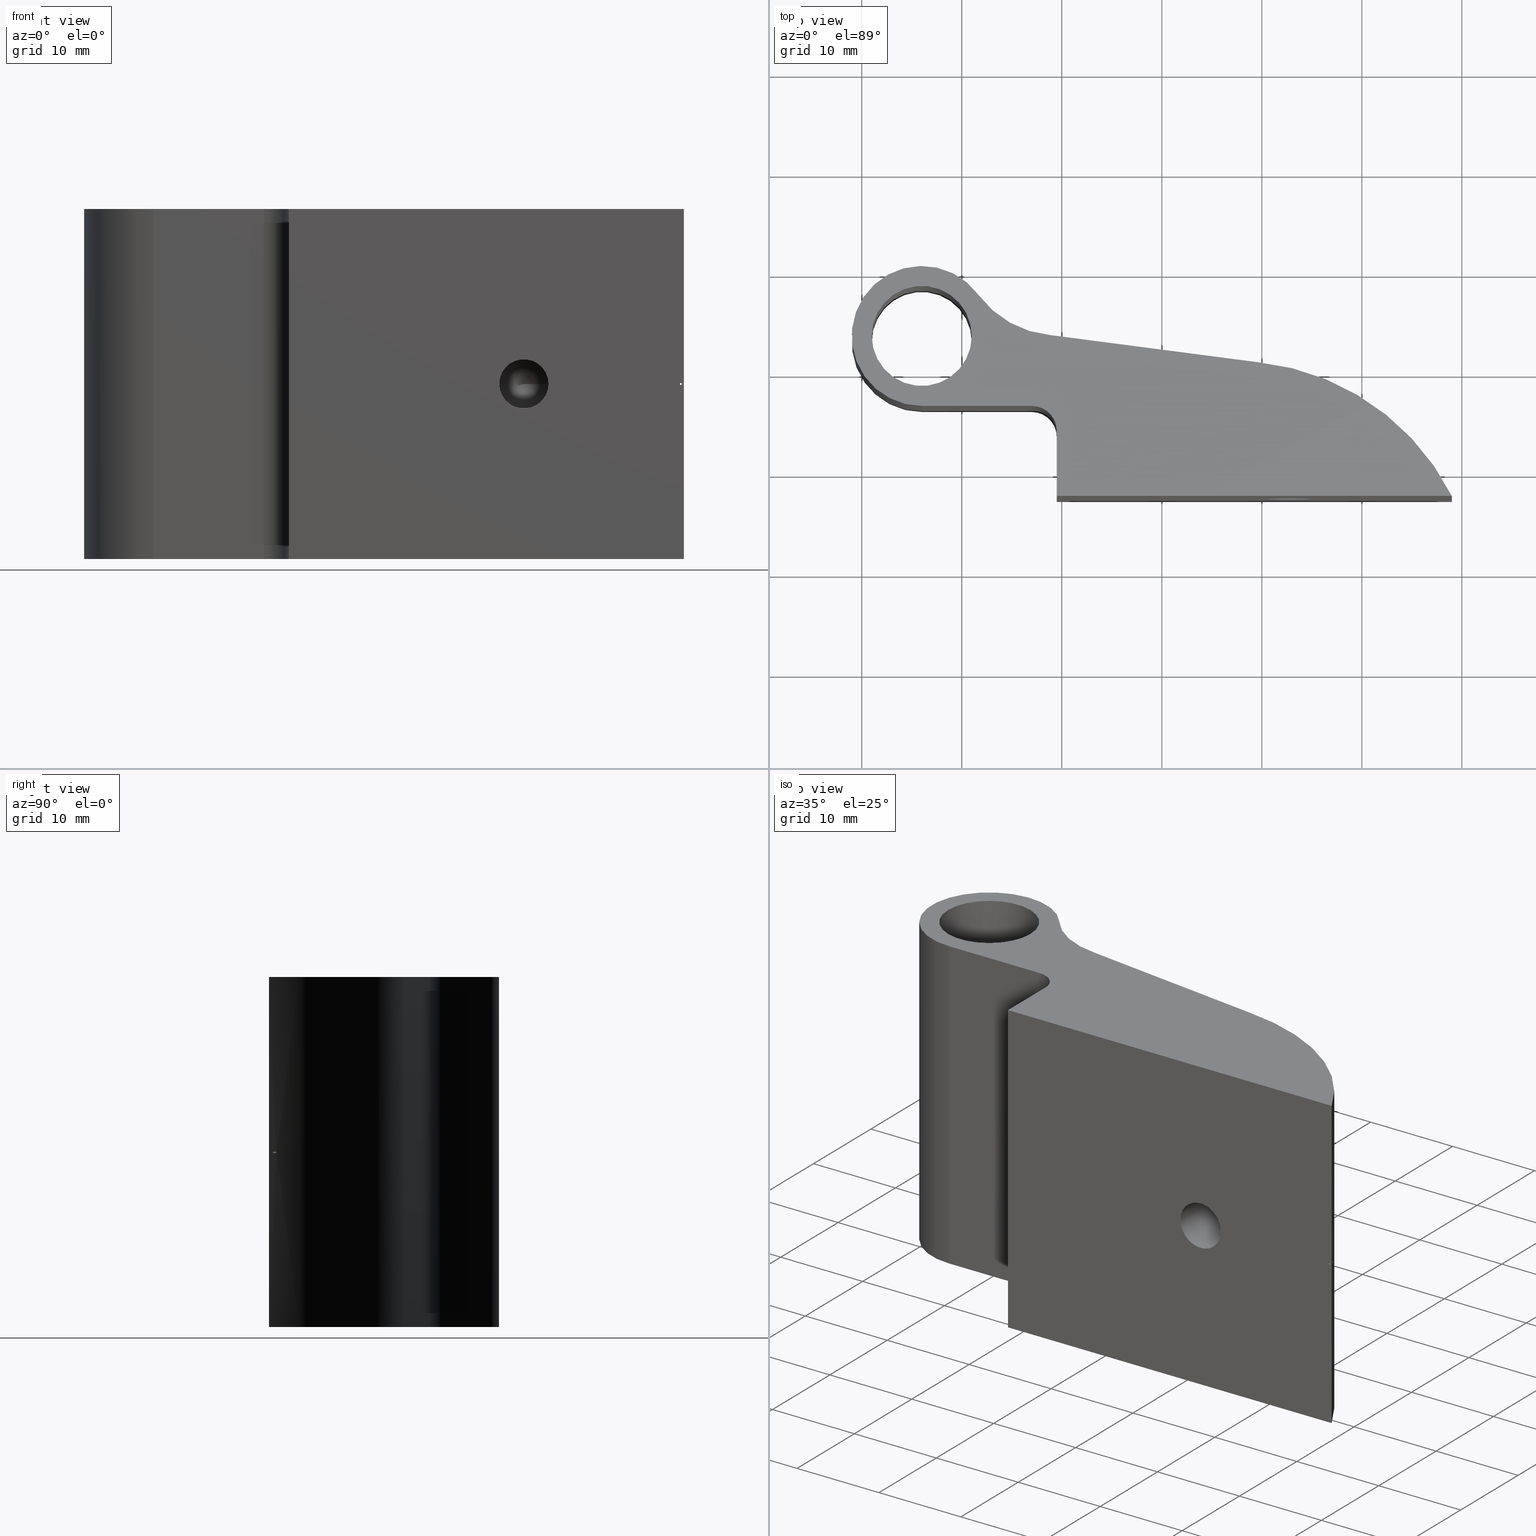
[diagram: canonical four-view strip — front | top / right | iso, engineering-drawing reading convention]
A machine part, canonical four-view strip (front | top / right | iso — engineering-drawing reading convention). The complete STEP part file that produces these views, byte-faithful:
ISO-10303-21;
HEADER;
/* Generated by software containing ST-Developer
 * from STEP Tools, Inc. (www.steptools.com) 
 */

FILE_DESCRIPTION(
/* description */ ('SEMICERNIERA MOBILE C.2348 ALL.ANOD.ARG.'),
/* implementation_level */ '2;1');

FILE_NAME(
/* name */ 
'Q:\\Catalogo\\2_Accessori Dierre\\Per Download Web e catalogo cartace
o\\CATALOGO ACCESSORI PER RIPARI\\PAGINA 58\\CCRAA0000023.stp',
/* time_stamp */ '2018-11-08T17:59:59+01:00',
/* author */ ('fzagni'),
/* organization */ (''),
/* preprocessor_version */ 'ST-DEVELOPER v16.1',
/* originating_system */ 'Autodesk Inventor 2016',
/* authorisation */ '');

FILE_SCHEMA (('AUTOMOTIVE_DESIGN { 1 0 10303 214 3 1 1 }'));
ENDSEC;

DATA;
#10=MECHANICAL_DESIGN_GEOMETRIC_PRESENTATION_REPRESENTATION('',(#13),#457);
#11=SHAPE_REPRESENTATION_RELATIONSHIP('SRR','None',#466,#12);
#12=ADVANCED_BREP_SHAPE_REPRESENTATION('',(#14),#456);
#13=STYLED_ITEM('',(#475),#14);
#14=MANIFOLD_SOLID_BREP('Solido1',#245);
#15=LINE('',#407,#31);
#16=LINE('',#409,#32);
#17=LINE('',#413,#33);
#18=LINE('',#419,#34);
#19=LINE('',#423,#35);
#20=LINE('',#425,#36);
#21=LINE('',#426,#37);
#22=LINE('',#430,#38);
#23=LINE('',#433,#39);
#24=LINE('',#434,#40);
#25=LINE('',#438,#41);
#26=LINE('',#442,#42);
#27=LINE('',#445,#43);
#28=LINE('',#446,#44);
#29=LINE('',#450,#45);
#30=LINE('',#452,#46);
#31=VECTOR('',#296,39.5);
#32=VECTOR('',#297,6.5);
#33=VECTOR('',#300,10.9999999999994);
#34=VECTOR('',#305,20.8640507154188);
#35=VECTOR('',#310,35.);
#36=VECTOR('',#311,6.5);
#37=VECTOR('',#312,35.);
#38=VECTOR('',#317,35.);
#39=VECTOR('',#320,10.9999999999994);
#40=VECTOR('',#321,35.);
#41=VECTOR('',#326,35.);
#42=VECTOR('',#331,35.);
#43=VECTOR('',#334,20.8640507154188);
#44=VECTOR('',#335,35.);
#45=VECTOR('',#340,35.);
#46=VECTOR('',#343,39.5);
#47=PLANE('',#256);
#48=PLANE('',#261);
#49=PLANE('',#264);
#50=PLANE('',#269);
#51=PLANE('',#272);
#52=PLANE('',#273);
#53=CONICAL_SURFACE('',#249,1.22925,59.);
#54=FACE_BOUND('',#90,.T.);
#55=FACE_BOUND('',#93,.T.);
#56=FACE_BOUND('',#95,.T.);
#57=FACE_BOUND('',#97,.T.);
#58=FACE_BOUND('',#105,.T.);
#59=FACE_BOUND('',#107,.T.);
#60=FACE_BOUND('',#108,.T.);
#61=FACE_BOUND('',#110,.T.);
#62=CIRCLE('',#248,0.100000000000001);
#63=CIRCLE('',#250,2.4585);
#64=CIRCLE('',#252,2.4585);
#65=CIRCLE('',#254,5.);
#66=CIRCLE('',#255,5.);
#67=CIRCLE('',#257,2.5);
#68=CIRCLE('',#258,7.);
#69=CIRCLE('',#259,10.);
#70=CIRCLE('',#260,24.5);
#71=CIRCLE('',#263,2.5);
#72=CIRCLE('',#266,7.);
#73=CIRCLE('',#268,10.);
#74=CIRCLE('',#271,24.5);
#75=FACE_OUTER_BOUND('',#89,.T.);
#76=FACE_OUTER_BOUND('',#91,.T.);
#77=FACE_OUTER_BOUND('',#92,.T.);
#78=FACE_OUTER_BOUND('',#94,.T.);
#79=FACE_OUTER_BOUND('',#96,.T.);
#80=FACE_OUTER_BOUND('',#98,.T.);
#81=FACE_OUTER_BOUND('',#99,.T.);
#82=FACE_OUTER_BOUND('',#100,.T.);
#83=FACE_OUTER_BOUND('',#101,.T.);
#84=FACE_OUTER_BOUND('',#102,.T.);
#85=FACE_OUTER_BOUND('',#103,.T.);
#86=FACE_OUTER_BOUND('',#104,.T.);
#87=FACE_OUTER_BOUND('',#106,.T.);
#88=FACE_OUTER_BOUND('',#109,.T.);
#89=EDGE_LOOP('',(#164));
#90=EDGE_LOOP('',(#165));
#91=EDGE_LOOP('',(#166));
#92=EDGE_LOOP('',(#167));
#93=EDGE_LOOP('',(#168));
#94=EDGE_LOOP('',(#169));
#95=EDGE_LOOP('',(#170));
#96=EDGE_LOOP('',(#171,#172,#173,#174,#175,#176,#177,#178));
#97=EDGE_LOOP('',(#179));
#98=EDGE_LOOP('',(#180,#181,#182,#183));
#99=EDGE_LOOP('',(#184,#185,#186,#187));
#100=EDGE_LOOP('',(#188,#189,#190,#191));
#101=EDGE_LOOP('',(#192,#193,#194,#195));
#102=EDGE_LOOP('',(#196,#197,#198,#199));
#103=EDGE_LOOP('',(#200,#201,#202,#203));
#104=EDGE_LOOP('',(#204,#205,#206,#207));
#105=EDGE_LOOP('',(#208));
#106=EDGE_LOOP('',(#209,#210,#211,#212));
#107=EDGE_LOOP('',(#213));
#108=EDGE_LOOP('',(#214));
#109=EDGE_LOOP('',(#215,#216,#217,#218,#219,#220,#221,#222));
#110=EDGE_LOOP('',(#223));
#111=B_SPLINE_CURVE_WITH_KNOTS('',3,(#349,#350,#351,#352,#353,#354,#355,
#356,#357,#358,#359,#360,#361,#362,#363,#364,#365,#366,#367,#368,#369,#370,
#371,#372,#373,#374,#375,#376,#377,#378,#379,#380,#381,#382,#383,#384,#385,
#386,#387,#388,#389,#390),.UNSPECIFIED.,.T.,.F.,(4,2,2,2,2,2,2,2,2,2,2,
2,2,2,2,2,2,2,2,2,4),(0.,0.00188123126465381,0.00376246252930762,0.00752492505861524,
0.0158380842048344,0.0241512433510535,0.0325772104449335,0.0410031775388136,
0.0447923396591711,0.0466869207193498,0.0485815017795285,0.0504760828397073,
0.052370663899886,0.0561598260202435,0.0645857931141235,0.0730117602080036,
0.0813249193542227,0.0896380785004418,0.0934005410297495,0.0952817722944033,
0.0971630035590571),.UNSPECIFIED.);
#112=VERTEX_POINT('',#348);
#113=VERTEX_POINT('',#391);
#114=VERTEX_POINT('',#394);
#115=VERTEX_POINT('',#397);
#116=VERTEX_POINT('',#400);
#117=VERTEX_POINT('',#402);
#118=VERTEX_POINT('',#405);
#119=VERTEX_POINT('',#406);
#120=VERTEX_POINT('',#408);
#121=VERTEX_POINT('',#410);
#122=VERTEX_POINT('',#412);
#123=VERTEX_POINT('',#414);
#124=VERTEX_POINT('',#416);
#125=VERTEX_POINT('',#418);
#126=VERTEX_POINT('',#422);
#127=VERTEX_POINT('',#424);
#128=VERTEX_POINT('',#428);
#129=VERTEX_POINT('',#432);
#130=VERTEX_POINT('',#436);
#131=VERTEX_POINT('',#440);
#132=VERTEX_POINT('',#444);
#133=VERTEX_POINT('',#448);
#134=EDGE_CURVE('',#112,#112,#111,.T.);
#135=EDGE_CURVE('',#113,#113,#62,.T.);
#136=EDGE_CURVE('',#114,#114,#63,.T.);
#137=EDGE_CURVE('',#115,#115,#64,.T.);
#138=EDGE_CURVE('',#116,#116,#65,.T.);
#139=EDGE_CURVE('',#117,#117,#66,.T.);
#140=EDGE_CURVE('',#118,#119,#15,.T.);
#141=EDGE_CURVE('',#119,#120,#16,.T.);
#142=EDGE_CURVE('',#120,#121,#67,.T.);
#143=EDGE_CURVE('',#121,#122,#17,.T.);
#144=EDGE_CURVE('',#122,#123,#68,.T.);
#145=EDGE_CURVE('',#123,#124,#69,.T.);
#146=EDGE_CURVE('',#124,#125,#18,.T.);
#147=EDGE_CURVE('',#125,#118,#70,.T.);
#148=EDGE_CURVE('',#126,#119,#19,.T.);
#149=EDGE_CURVE('',#127,#126,#20,.T.);
#150=EDGE_CURVE('',#127,#120,#21,.T.);
#151=EDGE_CURVE('',#128,#127,#71,.T.);
#152=EDGE_CURVE('',#128,#121,#22,.T.);
#153=EDGE_CURVE('',#129,#128,#23,.T.);
#154=EDGE_CURVE('',#129,#122,#24,.T.);
#155=EDGE_CURVE('',#130,#129,#72,.T.);
#156=EDGE_CURVE('',#130,#123,#25,.T.);
#157=EDGE_CURVE('',#131,#130,#73,.T.);
#158=EDGE_CURVE('',#131,#124,#26,.T.);
#159=EDGE_CURVE('',#132,#131,#27,.T.);
#160=EDGE_CURVE('',#132,#125,#28,.T.);
#161=EDGE_CURVE('',#133,#132,#74,.T.);
#162=EDGE_CURVE('',#118,#133,#29,.T.);
#163=EDGE_CURVE('',#126,#133,#30,.T.);
#164=ORIENTED_EDGE('',*,*,#134,.F.);
#165=ORIENTED_EDGE('',*,*,#135,.F.);
#166=ORIENTED_EDGE('',*,*,#136,.T.);
#167=ORIENTED_EDGE('',*,*,#137,.F.);
#168=ORIENTED_EDGE('',*,*,#136,.F.);
#169=ORIENTED_EDGE('',*,*,#138,.F.);
#170=ORIENTED_EDGE('',*,*,#139,.F.);
#171=ORIENTED_EDGE('',*,*,#140,.T.);
#172=ORIENTED_EDGE('',*,*,#141,.T.);
#173=ORIENTED_EDGE('',*,*,#142,.T.);
#174=ORIENTED_EDGE('',*,*,#143,.T.);
#175=ORIENTED_EDGE('',*,*,#144,.T.);
#176=ORIENTED_EDGE('',*,*,#145,.T.);
#177=ORIENTED_EDGE('',*,*,#146,.T.);
#178=ORIENTED_EDGE('',*,*,#147,.T.);
#179=ORIENTED_EDGE('',*,*,#138,.T.);
#180=ORIENTED_EDGE('',*,*,#148,.F.);
#181=ORIENTED_EDGE('',*,*,#149,.F.);
#182=ORIENTED_EDGE('',*,*,#150,.T.);
#183=ORIENTED_EDGE('',*,*,#141,.F.);
#184=ORIENTED_EDGE('',*,*,#150,.F.);
#185=ORIENTED_EDGE('',*,*,#151,.F.);
#186=ORIENTED_EDGE('',*,*,#152,.T.);
#187=ORIENTED_EDGE('',*,*,#142,.F.);
#188=ORIENTED_EDGE('',*,*,#152,.F.);
#189=ORIENTED_EDGE('',*,*,#153,.F.);
#190=ORIENTED_EDGE('',*,*,#154,.T.);
#191=ORIENTED_EDGE('',*,*,#143,.F.);
#192=ORIENTED_EDGE('',*,*,#154,.F.);
#193=ORIENTED_EDGE('',*,*,#155,.F.);
#194=ORIENTED_EDGE('',*,*,#156,.T.);
#195=ORIENTED_EDGE('',*,*,#144,.F.);
#196=ORIENTED_EDGE('',*,*,#156,.F.);
#197=ORIENTED_EDGE('',*,*,#157,.F.);
#198=ORIENTED_EDGE('',*,*,#158,.T.);
#199=ORIENTED_EDGE('',*,*,#145,.F.);
#200=ORIENTED_EDGE('',*,*,#158,.F.);
#201=ORIENTED_EDGE('',*,*,#159,.F.);
#202=ORIENTED_EDGE('',*,*,#160,.T.);
#203=ORIENTED_EDGE('',*,*,#146,.F.);
#204=ORIENTED_EDGE('',*,*,#160,.F.);
#205=ORIENTED_EDGE('',*,*,#161,.F.);
#206=ORIENTED_EDGE('',*,*,#162,.F.);
#207=ORIENTED_EDGE('',*,*,#147,.F.);
#208=ORIENTED_EDGE('',*,*,#134,.T.);
#209=ORIENTED_EDGE('',*,*,#162,.T.);
#210=ORIENTED_EDGE('',*,*,#163,.F.);
#211=ORIENTED_EDGE('',*,*,#148,.T.);
#212=ORIENTED_EDGE('',*,*,#140,.F.);
#213=ORIENTED_EDGE('',*,*,#135,.T.);
#214=ORIENTED_EDGE('',*,*,#137,.T.);
#215=ORIENTED_EDGE('',*,*,#163,.T.);
#216=ORIENTED_EDGE('',*,*,#161,.T.);
#217=ORIENTED_EDGE('',*,*,#159,.T.);
#218=ORIENTED_EDGE('',*,*,#157,.T.);
#219=ORIENTED_EDGE('',*,*,#155,.T.);
#220=ORIENTED_EDGE('',*,*,#153,.T.);
#221=ORIENTED_EDGE('',*,*,#151,.T.);
#222=ORIENTED_EDGE('',*,*,#149,.T.);
#223=ORIENTED_EDGE('',*,*,#139,.T.);
#224=CYLINDRICAL_SURFACE('',#247,0.100000000000001);
#225=CYLINDRICAL_SURFACE('',#251,2.4585);
#226=CYLINDRICAL_SURFACE('',#253,5.);
#227=CYLINDRICAL_SURFACE('',#262,2.5);
#228=CYLINDRICAL_SURFACE('',#265,7.);
#229=CYLINDRICAL_SURFACE('',#267,10.);
#230=CYLINDRICAL_SURFACE('',#270,24.5);
#231=ADVANCED_FACE('',(#75,#54),#224,.F.);
#232=ADVANCED_FACE('',(#76),#53,.F.);
#233=ADVANCED_FACE('',(#77,#55),#225,.F.);
#234=ADVANCED_FACE('',(#78,#56),#226,.F.);
#235=ADVANCED_FACE('',(#79,#57),#47,.F.);
#236=ADVANCED_FACE('',(#80),#48,.T.);
#237=ADVANCED_FACE('',(#81),#227,.F.);
#238=ADVANCED_FACE('',(#82),#49,.T.);
#239=ADVANCED_FACE('',(#83),#228,.T.);
#240=ADVANCED_FACE('',(#84),#229,.F.);
#241=ADVANCED_FACE('',(#85),#50,.T.);
#242=ADVANCED_FACE('',(#86,#58),#230,.T.);
#243=ADVANCED_FACE('',(#87,#59,#60),#51,.T.);
#244=ADVANCED_FACE('',(#88,#61),#52,.T.);
#245=CLOSED_SHELL('',(#231,#232,#233,#234,#235,#236,#237,#238,#239,#240,
#241,#242,#243,#244));
#246=AXIS2_PLACEMENT_3D('placement',#346,#274,#275);
#247=AXIS2_PLACEMENT_3D('',#347,#276,#277);
#248=AXIS2_PLACEMENT_3D('',#392,#278,#279);
#249=AXIS2_PLACEMENT_3D('',#393,#280,#281);
#250=AXIS2_PLACEMENT_3D('',#395,#282,#283);
#251=AXIS2_PLACEMENT_3D('',#396,#284,#285);
#252=AXIS2_PLACEMENT_3D('',#398,#286,#287);
#253=AXIS2_PLACEMENT_3D('',#399,#288,#289);
#254=AXIS2_PLACEMENT_3D('',#401,#290,#291);
#255=AXIS2_PLACEMENT_3D('',#403,#292,#293);
#256=AXIS2_PLACEMENT_3D('',#404,#294,#295);
#257=AXIS2_PLACEMENT_3D('',#411,#298,#299);
#258=AXIS2_PLACEMENT_3D('',#415,#301,#302);
#259=AXIS2_PLACEMENT_3D('',#417,#303,#304);
#260=AXIS2_PLACEMENT_3D('',#420,#306,#307);
#261=AXIS2_PLACEMENT_3D('',#421,#308,#309);
#262=AXIS2_PLACEMENT_3D('',#427,#313,#314);
#263=AXIS2_PLACEMENT_3D('',#429,#315,#316);
#264=AXIS2_PLACEMENT_3D('',#431,#318,#319);
#265=AXIS2_PLACEMENT_3D('',#435,#322,#323);
#266=AXIS2_PLACEMENT_3D('',#437,#324,#325);
#267=AXIS2_PLACEMENT_3D('',#439,#327,#328);
#268=AXIS2_PLACEMENT_3D('',#441,#329,#330);
#269=AXIS2_PLACEMENT_3D('',#443,#332,#333);
#270=AXIS2_PLACEMENT_3D('',#447,#336,#337);
#271=AXIS2_PLACEMENT_3D('',#449,#338,#339);
#272=AXIS2_PLACEMENT_3D('',#451,#341,#342);
#273=AXIS2_PLACEMENT_3D('',#453,#344,#345);
#274=DIRECTION('axis',(0.,0.,1.));
#275=DIRECTION('refdir',(1.,0.,0.));
#276=DIRECTION('center_axis',(8.88178419700125E-17,1.,0.));
#277=DIRECTION('ref_axis',(-1.,8.88178419700125E-17,0.));
#278=DIRECTION('center_axis',(1.0540092005935E-16,1.,0.));
#279=DIRECTION('ref_axis',(-1.,8.88178419700125E-17,0.));
#280=DIRECTION('center_axis',(-1.0540092005935E-16,-1.,0.));
#281=DIRECTION('ref_axis',(1.,-1.0540092005935E-16,0.));
#282=DIRECTION('center_axis',(-1.0540092005935E-16,-1.,0.));
#283=DIRECTION('ref_axis',(1.,-1.0540092005935E-16,0.));
#284=DIRECTION('center_axis',(-1.0540092005935E-16,-1.,0.));
#285=DIRECTION('ref_axis',(1.,-1.0540092005935E-16,0.));
#286=DIRECTION('center_axis',(1.0540092005935E-16,1.,0.));
#287=DIRECTION('ref_axis',(1.,-1.0540092005935E-16,0.));
#288=DIRECTION('center_axis',(0.,0.,1.));
#289=DIRECTION('ref_axis',(1.,0.,0.));
#290=DIRECTION('center_axis',(0.,0.,1.));
#291=DIRECTION('ref_axis',(1.,0.,0.));
#292=DIRECTION('center_axis',(0.,0.,-1.));
#293=DIRECTION('ref_axis',(1.,0.,0.));
#294=DIRECTION('center_axis',(0.,0.,1.));
#295=DIRECTION('ref_axis',(1.,0.,0.));
#296=DIRECTION('',(-1.,1.0540092005935E-16,0.));
#297=DIRECTION('',(0.,1.,0.));
#298=DIRECTION('center_axis',(0.,0.,1.));
#299=DIRECTION('ref_axis',(1.,0.,0.));
#300=DIRECTION('',(-1.,0.,0.));
#301=DIRECTION('center_axis',(0.,0.,-1.));
#302=DIRECTION('ref_axis',(-0.806562039309799,-0.591149453813854,0.));
#303=DIRECTION('center_axis',(0.,0.,1.));
#304=DIRECTION('ref_axis',(-0.806562039309799,-0.591149453813855,0.));
#305=DIRECTION('',(0.991568697709726,-0.129582088740067,0.));
#306=DIRECTION('center_axis',(0.,0.,-1.));
#307=DIRECTION('ref_axis',(-0.89362720381593,-0.448810005013394,0.));
#308=DIRECTION('center_axis',(-1.,0.,0.));
#309=DIRECTION('ref_axis',(0.,-1.,0.));
#310=DIRECTION('',(0.,0.,-1.));
#311=DIRECTION('',(0.,-1.,0.));
#312=DIRECTION('',(0.,0.,-1.));
#313=DIRECTION('center_axis',(0.,0.,1.));
#314=DIRECTION('ref_axis',(1.,0.,0.));
#315=DIRECTION('center_axis',(0.,0.,-1.));
#316=DIRECTION('ref_axis',(1.,0.,0.));
#317=DIRECTION('',(0.,0.,-1.));
#318=DIRECTION('center_axis',(0.,-1.,0.));
#319=DIRECTION('ref_axis',(1.,0.,0.));
#320=DIRECTION('',(1.,0.,0.));
#321=DIRECTION('',(0.,0.,-1.));
#322=DIRECTION('center_axis',(0.,0.,1.));
#323=DIRECTION('ref_axis',(-0.806562039309799,-0.591149453813854,0.));
#324=DIRECTION('center_axis',(0.,0.,1.));
#325=DIRECTION('ref_axis',(-0.806562039309799,-0.591149453813854,0.));
#326=DIRECTION('',(0.,0.,-1.));
#327=DIRECTION('center_axis',(0.,0.,1.));
#328=DIRECTION('ref_axis',(-0.806562039309799,-0.591149453813855,0.));
#329=DIRECTION('center_axis',(0.,0.,-1.));
#330=DIRECTION('ref_axis',(-0.806562039309799,-0.591149453813855,0.));
#331=DIRECTION('',(0.,0.,-1.));
#332=DIRECTION('center_axis',(0.129582088740067,0.991568697709726,0.));
#333=DIRECTION('ref_axis',(-0.991568697709726,0.129582088740067,0.));
#334=DIRECTION('',(-0.991568697709726,0.129582088740067,0.));
#335=DIRECTION('',(0.,0.,-1.));
#336=DIRECTION('center_axis',(0.,0.,1.));
#337=DIRECTION('ref_axis',(-0.89362720381593,-0.448810005013394,0.));
#338=DIRECTION('center_axis',(0.,0.,1.));
#339=DIRECTION('ref_axis',(-0.89362720381593,-0.448810005013394,0.));
#340=DIRECTION('',(0.,0.,1.));
#341=DIRECTION('center_axis',(-1.0540092005935E-16,-1.,0.));
#342=DIRECTION('ref_axis',(1.,-8.88178419700125E-17,0.));
#343=DIRECTION('',(1.,-1.0540092005935E-16,0.));
#344=DIRECTION('center_axis',(0.,0.,1.));
#345=DIRECTION('ref_axis',(1.,0.,0.));
#346=CARTESIAN_POINT('',(0.,0.,0.));
#347=CARTESIAN_POINT('Origin',(18.7,-2.5,0.));
#348=CARTESIAN_POINT('',(18.6,-1.7372864033245,0.));
#349=CARTESIAN_POINT('Ctrl Pts',(18.6,-1.7372864033245,0.));
#350=CARTESIAN_POINT('Ctrl Pts',(18.6,-1.7372864033245,-0.00627077088217937));
#351=CARTESIAN_POINT('Ctrl Pts',(18.6005932687666,-1.73837070658877,-0.0123732804029664));
#352=CARTESIAN_POINT('Ctrl Pts',(18.6027400690012,-1.7422962464989,-0.0239891203415992));
#353=CARTESIAN_POINT('Ctrl Pts',(18.6042999169151,-1.74514905815938,-0.0294973673337148));
#354=CARTESIAN_POINT('Ctrl Pts',(18.609950694511,-1.75549142158099,-0.0448623885266569));
#355=CARTESIAN_POINT('Ctrl Pts',(18.6150868532318,-1.76490150913294,-0.0534843642077037));
#356=CARTESIAN_POINT('Ctrl Pts',(18.6313475234348,-1.79474650020179,-0.0750504587361407));
#357=CARTESIAN_POINT('Ctrl Pts',(18.6447977997084,-1.81951047264187,-0.084773080874694));
#358=CARTESIAN_POINT('Ctrl Pts',(18.6725678508869,-1.87088213854088,-0.0973575655684622));
#359=CARTESIAN_POINT('Ctrl Pts',(18.6869094435977,-1.89753154598838,-0.100000000000001));
#360=CARTESIAN_POINT('Ctrl Pts',(18.7132681926987,-1.94671011160014,-0.100000000000001));
#361=CARTESIAN_POINT('Ctrl Pts',(18.7277091682821,-1.97376432641345,-0.0972810609314046));
#362=CARTESIAN_POINT('Ctrl Pts',(18.755510267839,-2.02608657559879,-0.0845830229714753));
#363=CARTESIAN_POINT('Ctrl Pts',(18.7688922622229,-2.05139441893652,-0.074816772551205));
#364=CARTESIAN_POINT('Ctrl Pts',(18.7850133365983,-2.0819814323071,-0.0533126428741607));
#365=CARTESIAN_POINT('Ctrl Pts',(18.7900881518354,-2.09162778158007,-0.0447624997391392));
#366=CARTESIAN_POINT('Ctrl Pts',(18.7957002873671,-2.1023070290183,-0.0294940060063107));
#367=CARTESIAN_POINT('Ctrl Pts',(18.7972528706309,-2.10526366360926,-0.0240144076993157));
#368=CARTESIAN_POINT('Ctrl Pts',(18.7993999673126,-2.10935331537105,-0.0124226814002537));
#369=CARTESIAN_POINT('Ctrl Pts',(18.8,-2.11049679426925,-0.00631527020059577));
#370=CARTESIAN_POINT('Ctrl Pts',(18.8,-2.11049679426925,0.00631527020059576));
#371=CARTESIAN_POINT('Ctrl Pts',(18.7993999673126,-2.10935331537105,0.0124226814002537));
#372=CARTESIAN_POINT('Ctrl Pts',(18.7972528706309,-2.10526366360926,0.0240144076993157));
#373=CARTESIAN_POINT('Ctrl Pts',(18.7957002873671,-2.1023070290183,0.0294940060063106));
#374=CARTESIAN_POINT('Ctrl Pts',(18.7900881518354,-2.09162778158007,0.0447624997391392));
#375=CARTESIAN_POINT('Ctrl Pts',(18.7850133365983,-2.0819814323071,0.0533126428741606));
#376=CARTESIAN_POINT('Ctrl Pts',(18.7688922622229,-2.05139441893652,0.074816772551205));
#377=CARTESIAN_POINT('Ctrl Pts',(18.755510267839,-2.02608657559879,0.0845830229714753));
#378=CARTESIAN_POINT('Ctrl Pts',(18.7277091682821,-1.97376432641345,0.0972810609314046));
#379=CARTESIAN_POINT('Ctrl Pts',(18.7132681926987,-1.94671011160014,0.100000000000001));
#380=CARTESIAN_POINT('Ctrl Pts',(18.6869094435977,-1.89753154598838,0.100000000000001));
#381=CARTESIAN_POINT('Ctrl Pts',(18.6725678508869,-1.87088213854088,0.0973575655684622));
#382=CARTESIAN_POINT('Ctrl Pts',(18.6447977997084,-1.81951047264187,0.0847730808746941));
#383=CARTESIAN_POINT('Ctrl Pts',(18.6313475234348,-1.79474650020179,0.0750504587361407));
#384=CARTESIAN_POINT('Ctrl Pts',(18.6150868532318,-1.76490150913294,0.0534843642077037));
#385=CARTESIAN_POINT('Ctrl Pts',(18.609950694511,-1.75549142158099,0.0448623885266567));
#386=CARTESIAN_POINT('Ctrl Pts',(18.6042999169151,-1.74514905815938,0.0294973673337146));
#387=CARTESIAN_POINT('Ctrl Pts',(18.6027400690012,-1.7422962464989,0.0239891203415988));
#388=CARTESIAN_POINT('Ctrl Pts',(18.6005932687666,-1.73837070658877,0.0123732804029663));
#389=CARTESIAN_POINT('Ctrl Pts',(18.6,-1.7372864033245,0.00627077088217936));
#390=CARTESIAN_POINT('Ctrl Pts',(18.6,-1.7372864033245,0.));
#391=CARTESIAN_POINT('',(18.8,-2.5,1.22464679914737E-17));
#392=CARTESIAN_POINT('Origin',(18.7,-2.5,0.));
#393=CARTESIAN_POINT('Origin',(3.,7.23860791593963,0.));
#394=CARTESIAN_POINT('',(5.4585,6.5,0.));
#395=CARTESIAN_POINT('Origin',(3.,6.5,0.));
#396=CARTESIAN_POINT('Origin',(3.,2.,0.));
#397=CARTESIAN_POINT('',(5.4585,-2.5,0.));
#398=CARTESIAN_POINT('Origin',(3.,-2.5,0.));
#399=CARTESIAN_POINT('Origin',(-33.9999999999995,13.5,-55.6710325197064));
#400=CARTESIAN_POINT('',(-38.9999999999995,13.5,-17.5));
#401=CARTESIAN_POINT('Origin',(-33.9999999999995,13.5,-17.5));
#402=CARTESIAN_POINT('',(-28.9999999999995,13.5,17.5));
#403=CARTESIAN_POINT('Origin',(-33.9999999999995,13.5,17.5));
#404=CARTESIAN_POINT('Origin',(-11.9526444164431,6.07996110615042,-17.5));
#405=CARTESIAN_POINT('',(19.,-2.5,-17.5));
#406=CARTESIAN_POINT('',(-20.5,-2.5,-17.5));
#407=CARTESIAN_POINT('',(19.,-2.5,-17.5));
#408=CARTESIAN_POINT('',(-20.5,4.,-17.5));
#409=CARTESIAN_POINT('',(-20.5,-2.5,-17.5));
#410=CARTESIAN_POINT('',(-23.,6.5,-17.5));
#411=CARTESIAN_POINT('Origin',(-23.,4.,-17.5));
#412=CARTESIAN_POINT('',(-33.9999999999995,6.5,-17.5));
#413=CARTESIAN_POINT('',(-23.,6.5,-17.5));
#414=CARTESIAN_POINT('',(-28.3540657248309,17.638046176697,-17.5));
#415=CARTESIAN_POINT('Origin',(-33.9999999999995,13.5,-17.5));
#416=CARTESIAN_POINT('',(-21.1475886524639,13.5865154336048,-17.5));
#417=CARTESIAN_POINT('Origin',(-20.2884453317329,23.5495407148355,-17.5));
#418=CARTESIAN_POINT('',(-0.459449055626422,10.8829081623221,-17.5));
#419=CARTESIAN_POINT('',(-21.1475886524639,13.5865154336048,-17.5));
#420=CARTESIAN_POINT('Origin',(-2.89386649349029,-13.4958451228282,-17.5));
#421=CARTESIAN_POINT('Origin',(-20.5,4.,0.));
#422=CARTESIAN_POINT('',(-20.5,-2.5,17.5));
#423=CARTESIAN_POINT('',(-20.5,-2.5,0.));
#424=CARTESIAN_POINT('',(-20.5,4.,17.5));
#425=CARTESIAN_POINT('',(-20.5,-2.5,17.5));
#426=CARTESIAN_POINT('',(-20.5,4.,0.));
#427=CARTESIAN_POINT('Origin',(-23.,4.,0.));
#428=CARTESIAN_POINT('',(-23.,6.5,17.5));
#429=CARTESIAN_POINT('Origin',(-23.,4.,17.5));
#430=CARTESIAN_POINT('',(-23.,6.5,0.));
#431=CARTESIAN_POINT('Origin',(-33.9999999999995,6.5,0.));
#432=CARTESIAN_POINT('',(-33.9999999999995,6.5,17.5));
#433=CARTESIAN_POINT('',(-23.,6.5,17.5));
#434=CARTESIAN_POINT('',(-33.9999999999995,6.5,0.));
#435=CARTESIAN_POINT('Origin',(-33.9999999999995,13.5,0.));
#436=CARTESIAN_POINT('',(-28.3540657248309,17.638046176697,17.5));
#437=CARTESIAN_POINT('Origin',(-33.9999999999995,13.5,17.5));
#438=CARTESIAN_POINT('',(-28.3540657248309,17.638046176697,0.));
#439=CARTESIAN_POINT('Origin',(-20.2884453317329,23.5495407148355,0.));
#440=CARTESIAN_POINT('',(-21.1475886524639,13.5865154336048,17.5));
#441=CARTESIAN_POINT('Origin',(-20.2884453317329,23.5495407148355,17.5));
#442=CARTESIAN_POINT('',(-21.1475886524639,13.5865154336048,0.));
#443=CARTESIAN_POINT('Origin',(-0.459449055626422,10.8829081623221,0.));
#444=CARTESIAN_POINT('',(-0.459449055626422,10.8829081623221,17.5));
#445=CARTESIAN_POINT('',(-21.1475886524639,13.5865154336048,17.5));
#446=CARTESIAN_POINT('',(-0.459449055626421,10.8829081623221,0.));
#447=CARTESIAN_POINT('Origin',(-2.89386649349029,-13.4958451228282,0.));
#448=CARTESIAN_POINT('',(19.,-2.5,17.5));
#449=CARTESIAN_POINT('Origin',(-2.89386649349029,-13.4958451228282,17.5));
#450=CARTESIAN_POINT('',(19.,-2.5,0.));
#451=CARTESIAN_POINT('Origin',(-20.5,-2.5,0.));
#452=CARTESIAN_POINT('',(19.,-2.5,17.5));
#453=CARTESIAN_POINT('Origin',(-11.9526444164431,6.07996110615042,17.5));
#454=UNCERTAINTY_MEASURE_WITH_UNIT(LENGTH_MEASURE(0.01),#458,
'DISTANCE_ACCURACY_VALUE',
'Maximum model space distance between geometric entities at asserted c
onnectivities');
#455=UNCERTAINTY_MEASURE_WITH_UNIT(LENGTH_MEASURE(1.E-6),#458,
'DISTANCE_ACCURACY_VALUE',
'Maximum model space distance between geometric entities at asserted c
onnectivities');
#456=(
GEOMETRIC_REPRESENTATION_CONTEXT(3)
GLOBAL_UNCERTAINTY_ASSIGNED_CONTEXT((#454))
GLOBAL_UNIT_ASSIGNED_CONTEXT((#458,#461,#459))
REPRESENTATION_CONTEXT('','3D')
);
#457=(
GEOMETRIC_REPRESENTATION_CONTEXT(3)
GLOBAL_UNCERTAINTY_ASSIGNED_CONTEXT((#455))
GLOBAL_UNIT_ASSIGNED_CONTEXT((#458,#461,#459))
REPRESENTATION_CONTEXT('','3D')
);
#458=(
LENGTH_UNIT()
NAMED_UNIT(*)
SI_UNIT(.MILLI.,.METRE.)
);
#459=(
NAMED_UNIT(*)
SI_UNIT($,.STERADIAN.)
SOLID_ANGLE_UNIT()
);
#460=DIMENSIONAL_EXPONENTS(0.,0.,0.,0.,0.,0.,0.);
#461=(
CONVERSION_BASED_UNIT('degree',#463)
NAMED_UNIT(#460)
PLANE_ANGLE_UNIT()
);
#462=(
NAMED_UNIT(*)
PLANE_ANGLE_UNIT()
SI_UNIT($,.RADIAN.)
);
#463=PLANE_ANGLE_MEASURE_WITH_UNIT(PLANE_ANGLE_MEASURE(0.01745329252),#462);
#464=SHAPE_DEFINITION_REPRESENTATION(#465,#466);
#465=PRODUCT_DEFINITION_SHAPE('',$,#468);
#466=SHAPE_REPRESENTATION('',(#246),#456);
#467=PRODUCT_DEFINITION_CONTEXT('part definition',#472,'design');
#468=PRODUCT_DEFINITION('B3DTM0012026','B3DTM0012026',#469,#467);
#469=PRODUCT_DEFINITION_FORMATION('','A',#474);
#470=PRODUCT_RELATED_PRODUCT_CATEGORY('B3DTM0012026','B3DTM0012026',(#474));
#471=APPLICATION_PROTOCOL_DEFINITION('international standard',
'automotive_design',2009,#472);
#472=APPLICATION_CONTEXT(
'Core Data for Automotive Mechanical Design Process');
#473=PRODUCT_CONTEXT('part definition',#472,'mechanical');
#474=PRODUCT('B3DTM0012026','B3DTM0012026',$,(#473));
#475=PRESENTATION_STYLE_ASSIGNMENT((#476));
#476=SURFACE_STYLE_USAGE(.BOTH.,#477);
#477=SURFACE_SIDE_STYLE('',(#478));
#478=SURFACE_STYLE_FILL_AREA(#479);
#479=FILL_AREA_STYLE('',(#480));
#480=FILL_AREA_STYLE_COLOUR('',#481);
#481=COLOUR_RGB('',0.752941176470588,0.752941176470588,0.752941176470588);
ENDSEC;
END-ISO-10303-21;
